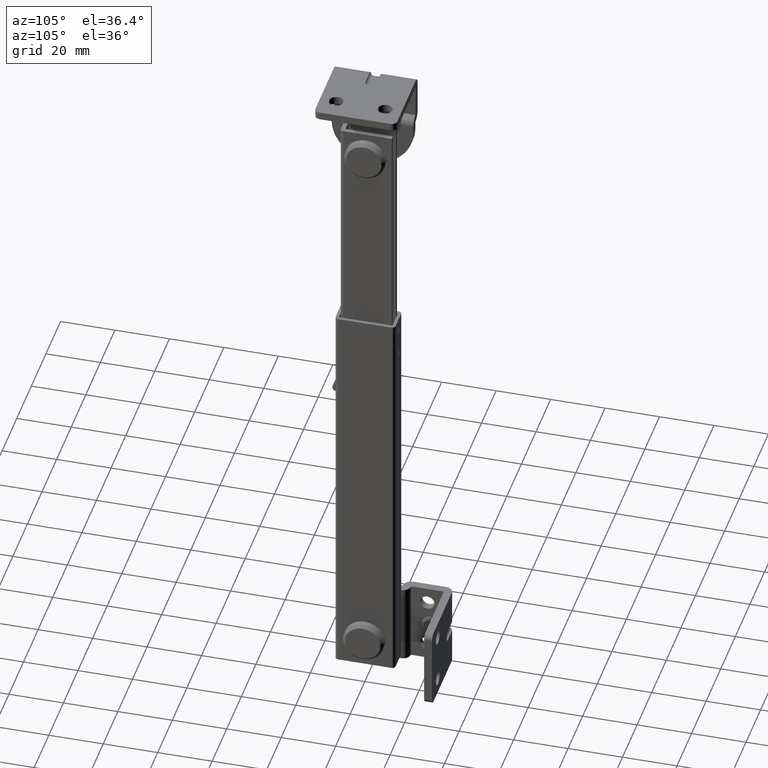
[diagram: clean part render]
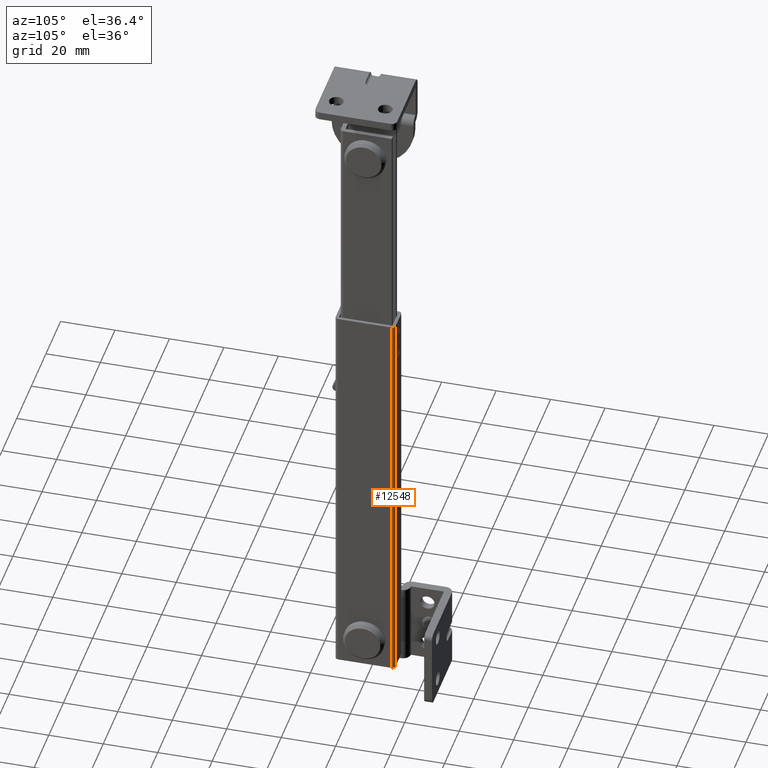
[diagram: same view with one face highlighted and labeled with its STEP entity id]
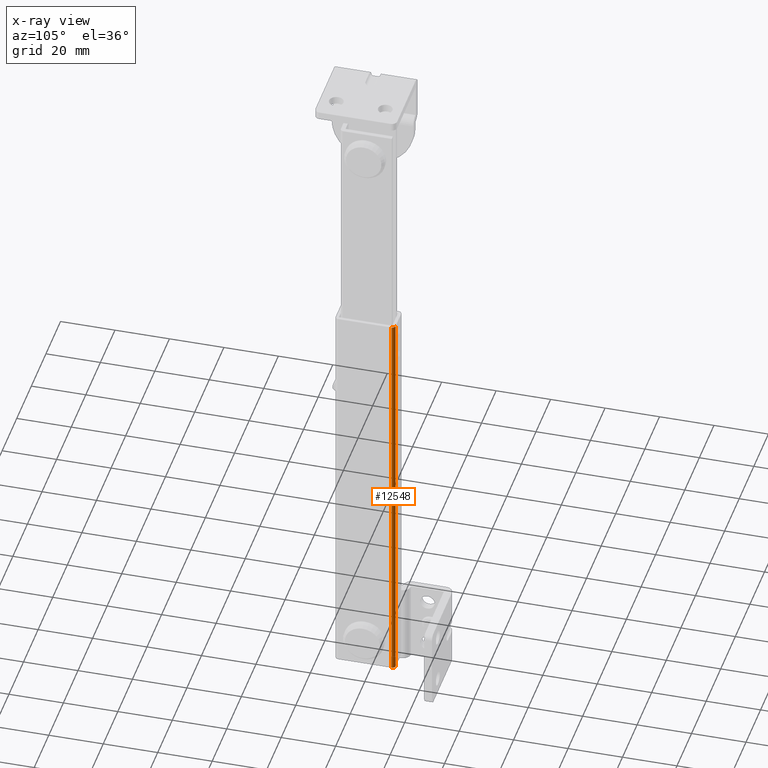
[diagram: x-ray of the same camera — body ghosted, the highlighted face saturated]
A machine part, auxiliary view. The second image highlights one B-rep face of the part: STEP entity #12548.
The next image is the same camera in x-ray: the body ghosted, the highlighted face saturated — about 0% of this face is hidden behind the body in this view.
In plain terms, the highlighted face is a freeform B-spline surface patch.
Its self-contained STEP definition (entity closure, byte-faithful):
#12268=CARTESIAN_POINT('',(0.000003000000003,9.799999000000000,139.0));
#12269=VERTEX_POINT('',#12268);
#12275=CARTESIAN_POINT('',(-1.199997000000000,11.0,139.0));
#12276=VERTEX_POINT('',#12275);
#12277=CARTESIAN_POINT('',(-1.199997000000000,11.0,139.0));
#12278=CARTESIAN_POINT('',(0.000003000000001,10.999999500000001,139.0));
#12279=CARTESIAN_POINT('',(0.000003000000003,9.799999000000000,139.0));
#12287=(BOUNDED_CURVE()B_SPLINE_CURVE(2,(#12277,#12278,#12279),.UNSPECIFIED.,.F.,.U.)CURVE()GEOMETRIC_REPRESENTATION_ITEM()QUASI_UNIFORM_CURVE()RATIONAL_B_SPLINE_CURVE((1.0,0.707106781186547,1.0))REPRESENTATION_ITEM(''));
#12288=EDGE_CURVE('',#12276,#12269,#12287,.T.);
#12416=CARTESIAN_POINT('',(-1.199997000000000,11.0,-11.0));
#12417=VERTEX_POINT('',#12416);
#12423=CARTESIAN_POINT('',(0.000003000000003,9.799999000000000,-11.0));
#12424=VERTEX_POINT('',#12423);
#12425=CARTESIAN_POINT('',(-1.199997000000000,11.0,-11.0));
#12426=CARTESIAN_POINT('',(0.000003000000001,10.999999500000001,-11.0));
#12427=CARTESIAN_POINT('',(0.000003000000003,9.799999000000000,-11.0));
#12435=(BOUNDED_CURVE()B_SPLINE_CURVE(2,(#12425,#12426,#12427),.UNSPECIFIED.,.F.,.U.)CURVE()GEOMETRIC_REPRESENTATION_ITEM()QUASI_UNIFORM_CURVE()RATIONAL_B_SPLINE_CURVE((1.0,0.707106781186547,1.0))REPRESENTATION_ITEM(''));
#12436=EDGE_CURVE('',#12417,#12424,#12435,.T.);
#12520=CARTESIAN_POINT('',(-1.231409337969448,10.999587789970670,-14.750000000000000));
#12521=CARTESIAN_POINT('',(-1.231409337969448,10.999587789970670,142.843750000000000));
#12522=CARTESIAN_POINT('',(0.089984510038966,11.034189705636622,-14.750000000000004));
#12523=CARTESIAN_POINT('',(0.089984510038966,11.034189705636622,142.843750000000030));
#12524=CARTESIAN_POINT('',(-0.002967608812606,9.715615135229912,-14.750000000000007));
#12525=CARTESIAN_POINT('',(-0.002967608812606,9.715615135229912,142.843750000000030));
#12533=(BOUNDED_SURFACE()B_SPLINE_SURFACE(1,2,((#12520,#12522,#12524),(#12521,#12523,#12525)),.UNSPECIFIED.,.F.,.F.,.U.)B_SPLINE_SURFACE_WITH_KNOTS((2,2),(3,3),(0.0,157.593750000000000),(0.0,2.125370541853346),.UNSPECIFIED.)GEOMETRIC_REPRESENTATION_ITEM()RATIONAL_B_SPLINE_SURFACE(((1.0,0.670944265029394,0.996392565777987),(1.0,0.670944265029394,0.996392565777987)))REPRESENTATION_ITEM('')SURFACE());
#12534=ORIENTED_EDGE('',*,*,#12288,.T.);
#12535=CARTESIAN_POINT('',(0.000003000000003,9.799999000000000,-11.0));
#12536=CARTESIAN_POINT('',(0.000003000000003,9.799999000000000,139.0));
#12537=QUASI_UNIFORM_CURVE('',1,(#12535,#12536),.UNSPECIFIED.,.F.,.U.);
#12538=EDGE_CURVE('',#12424,#12269,#12537,.T.);
#12539=ORIENTED_EDGE('',*,*,#12538,.F.);
#12540=ORIENTED_EDGE('',*,*,#12436,.F.);
#12541=CARTESIAN_POINT('',(-1.199997000000000,11.0,-11.0));
#12542=CARTESIAN_POINT('',(-1.199997000000000,11.0,139.0));
#12543=QUASI_UNIFORM_CURVE('',1,(#12541,#12542),.UNSPECIFIED.,.F.,.U.);
#12544=EDGE_CURVE('',#12417,#12276,#12543,.T.);
#12545=ORIENTED_EDGE('',*,*,#12544,.T.);
#12546=EDGE_LOOP('',(#12534,#12539,#12540,#12545));
#12547=FACE_OUTER_BOUND('',#12546,.T.);
#12548=ADVANCED_FACE('',(#12547),#12533,.T.);